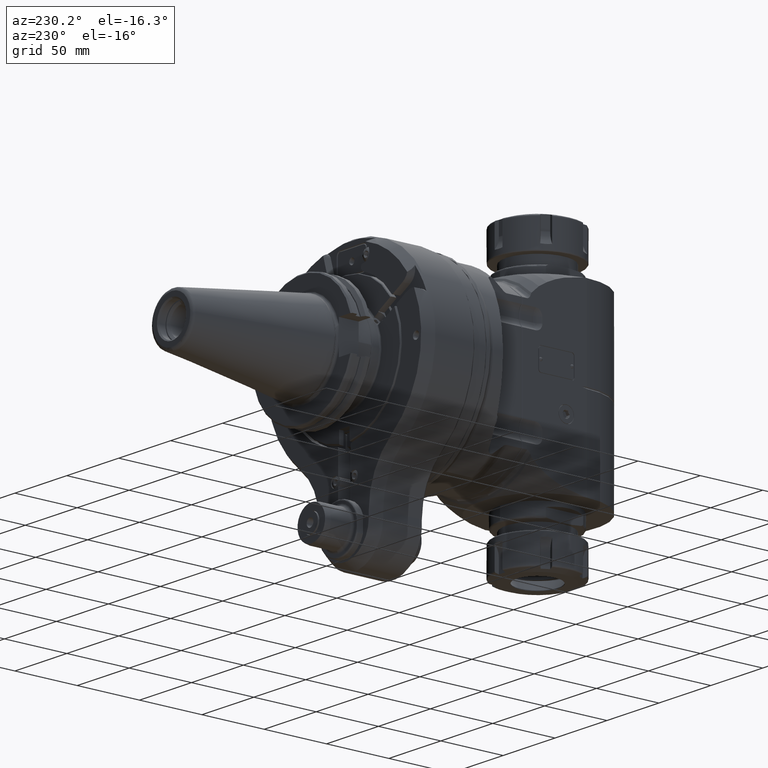
[diagram: clean part render]
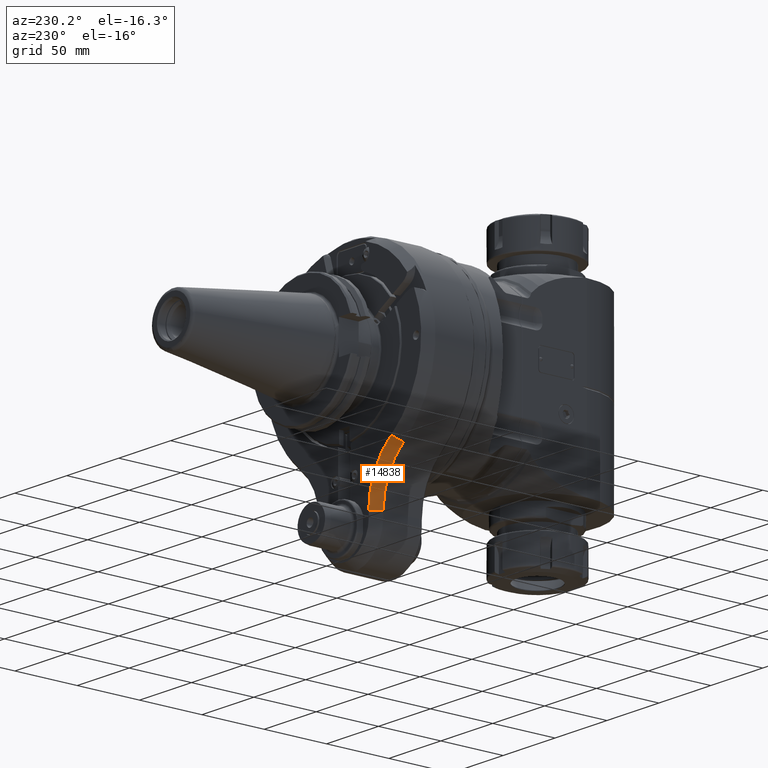
[diagram: same view with one face highlighted and labeled with its STEP entity id]
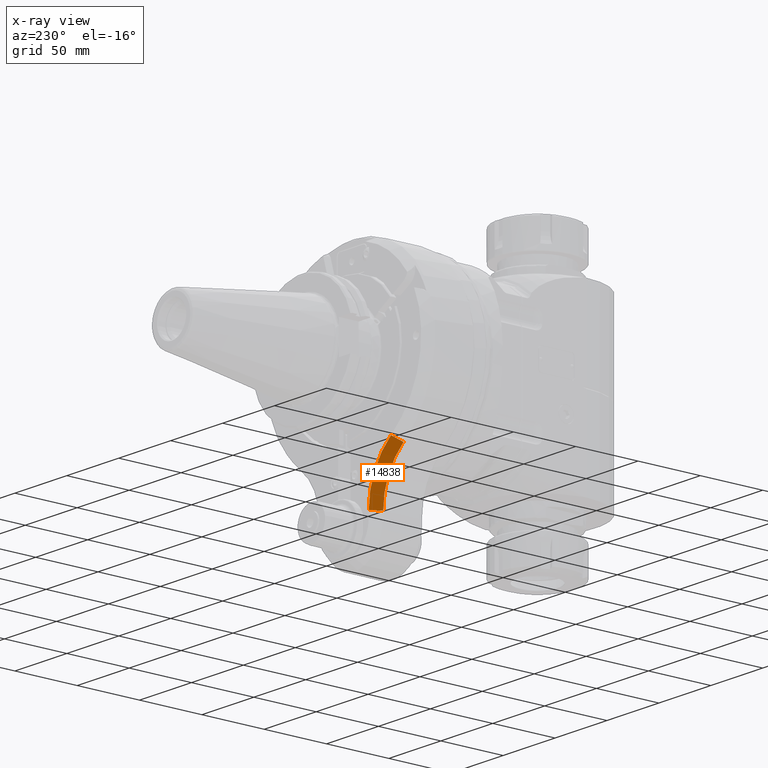
[diagram: x-ray of the same camera — body ghosted, the highlighted face saturated]
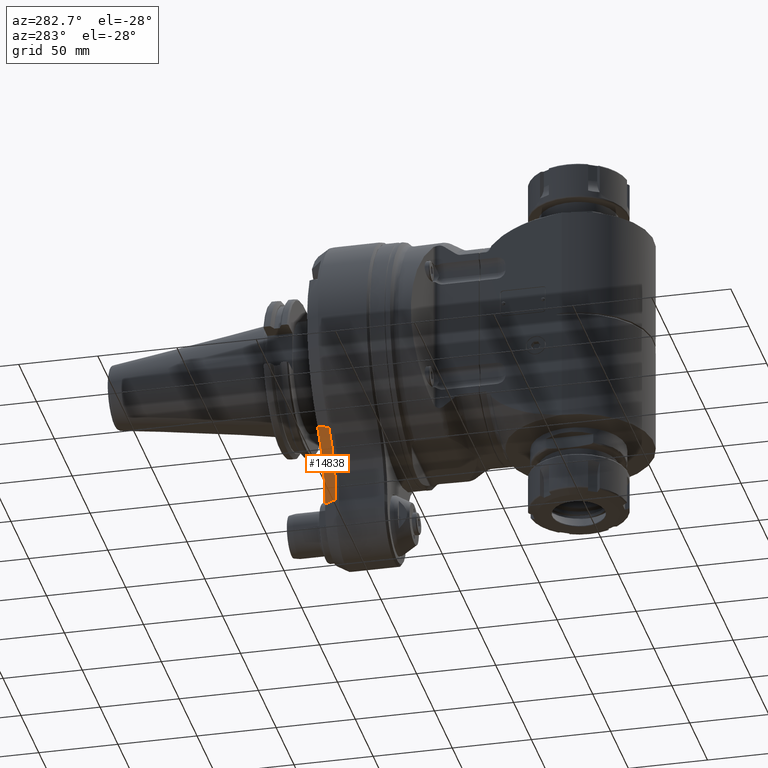
[diagram: same view with one face highlighted and labeled with its STEP entity id]
A machine part, auxiliary view. The second image highlights one B-rep face of the part: STEP entity #14838.
The next image is the same camera in x-ray: the body ghosted, the highlighted face saturated — about 0% of this face is hidden behind the body in this view.
A second angle (auxiliary view) of the same face is appended — the face is thin or edge-on in the first view.
In plain terms, the highlighted conical surface has half-angle 30 deg.
Its self-contained STEP definition (entity closure, byte-faithful):
#334=CONICAL_SURFACE('',#16518,52.25,0.523598775598299);
#1120=LINE('',#25035,#2091);
#1486=LINE('',#27683,#2457);
#2091=VECTOR('',#19045,8.99999993908094);
#2457=VECTOR('',#20527,8.99999999999971);
#3699=FACE_OUTER_BOUND('',#4660,.T.);
#4660=EDGE_LOOP('',(#12939,#12940,#12941,#12942));
#5236=CIRCLE('',#15943,50.);
#5256=CIRCLE('',#15971,54.5);
#6372=VERTEX_POINT('',#24822);
#6377=VERTEX_POINT('',#24844);
#6396=VERTEX_POINT('',#25033);
#6413=VERTEX_POINT('',#25069);
#8187=EDGE_CURVE('',#6377,#6372,#5236,.T.);
#8215=EDGE_CURVE('',#6372,#6396,#1120,.T.);
#8233=EDGE_CURVE('',#6413,#6396,#5256,.T.);
#8922=EDGE_CURVE('',#6413,#6377,#1486,.T.);
#12939=ORIENTED_EDGE('',*,*,#8187,.T.);
#12940=ORIENTED_EDGE('',*,*,#8215,.T.);
#12941=ORIENTED_EDGE('',*,*,#8233,.F.);
#12942=ORIENTED_EDGE('',*,*,#8922,.T.);
#14838=ADVANCED_FACE('',(#3699),#334,.F.);
#15943=AXIS2_PLACEMENT_3D('',#24845,#18998,#18999);
#15971=AXIS2_PLACEMENT_3D('',#25071,#19074,#19075);
#16518=AXIS2_PLACEMENT_3D('',#27682,#20525,#20526);
#18998=DIRECTION('center_axis',(0.,-1.,0.));
#18999=DIRECTION('ref_axis',(1.,0.,0.));
#19045=DIRECTION('',(0.303502089938602,0.866025409646406,0.397349306341003));
#19074=DIRECTION('center_axis',(0.,-1.,0.));
#19075=DIRECTION('ref_axis',(1.,0.,1.462785203872E-8));
#20525=DIRECTION('center_axis',(0.,1.,0.));
#20526=DIRECTION('ref_axis',(0.607003895980893,0.,0.794698855079091));
#20527=DIRECTION('',(-0.500000000000016,-0.866025403784428,-4.65169575944815E-8));
#24822=CARTESIAN_POINT('',(-47.6498054826,-7.79422863406,-62.3838603925));
#24844=CARTESIAN_POINT('',(-28.,-7.79422863406,-102.1188029715));
#24845=CARTESIAN_POINT('Origin',(-78.,-7.79422863406,-102.1188033616));
#25033=CARTESIAN_POINT('',(-44.9182866299284,1.75849896126105E-8,-58.8077165917949));
#25035=CARTESIAN_POINT('',(-47.6498054826,-7.79422863406,-62.3838603925));
#25069=CARTESIAN_POINT('',(-23.5,-2.07220032434565E-14,-102.118802554414));
#25071=CARTESIAN_POINT('Origin',(-78.,-4.263256414561E-14,-102.1188033616));
#27682=CARTESIAN_POINT('Origin',(-78.,-3.89711431703,-102.1188033616));
#27683=CARTESIAN_POINT('',(-23.5,0.,-102.1188025529));